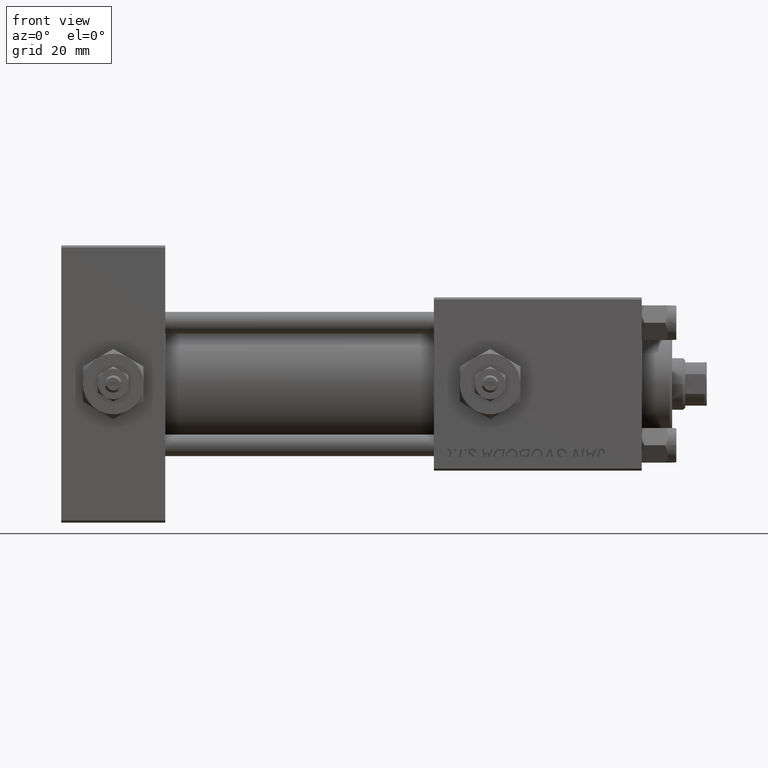
[diagram: clean part render]
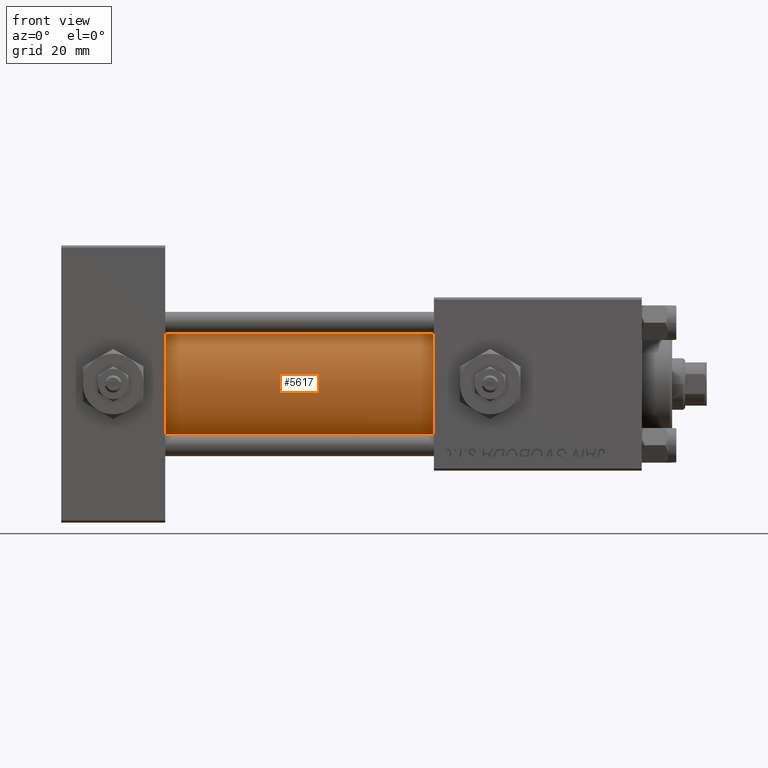
[diagram: same view with one face highlighted and labeled with its STEP entity id]
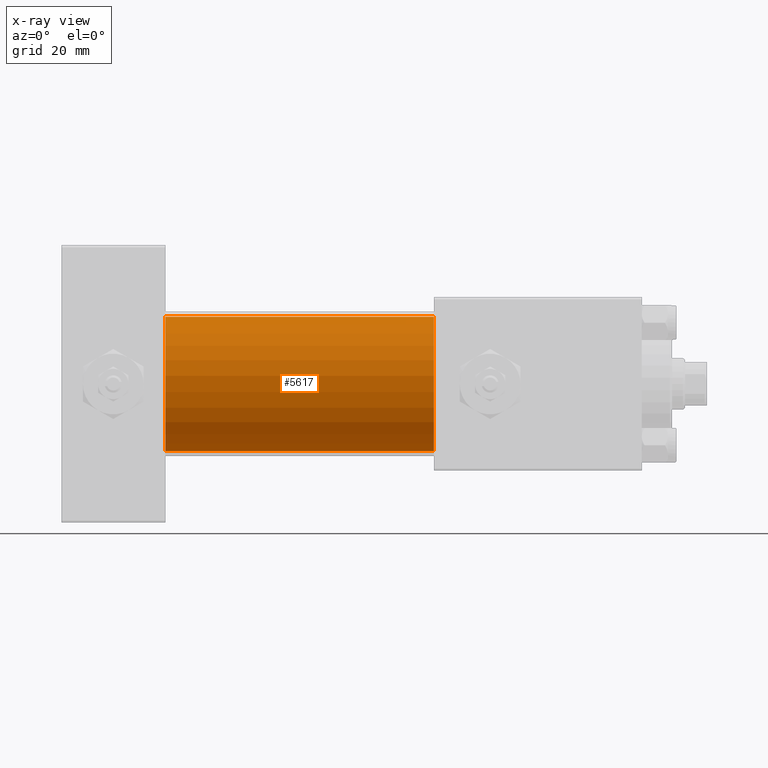
[diagram: x-ray of the same camera — body ghosted, the highlighted face saturated]
A machine part, front view. The second image highlights one B-rep face of the part: STEP entity #5617.
The next image is the same camera in x-ray: the body ghosted, the highlighted face saturated — about 0% of this face is hidden behind the body in this view.
In plain terms, the highlighted cylindrical surface (partial cylindrical patch) has radius 15.5 mm, axis along (-1, -0, -0).
Its self-contained STEP definition (entity closure, byte-faithful):
#3108 = ORIENTED_EDGE ( 'NONE', *, *, #39541, .F. ) ;
#3184 = FACE_OUTER_BOUND ( 'NONE', #23224, .T. ) ;
#4282 = AXIS2_PLACEMENT_3D ( 'NONE', #8747, #48393, #20033 ) ;
#4818 = EDGE_CURVE ( 'NONE', #21157, #40793, #36130, .T. ) ;
#5617 = ADVANCED_FACE ( 'NONE', ( #3184 ), #34932, .T. ) ;
#6907 = DIRECTION ( 'NONE',  ( 0.000000000000000000, 0.000000000000000000, -1.000000000000000000 ) ) ;
#8747 = CARTESIAN_POINT ( 'NONE',  ( 24.00000000000000000, -2.602085213965210642E-15, 0.000000000000000000 ) ) ;
#10787 = DIRECTION ( 'NONE',  ( -1.000000000000000000, -0.000000000000000000, -0.000000000000000000 ) ) ;
#11150 = CARTESIAN_POINT ( 'NONE',  ( 86.00000000000000000, -7.038826752868131828E-16, -15.50000000000000000 ) ) ;
#11913 = ORIENTED_EDGE ( 'NONE', *, *, #4818, .T. ) ;
#11941 = CARTESIAN_POINT ( 'NONE',  ( 24.00000000000000000, -2.602085213965210642E-15, 15.50000000000000000 ) ) ;
#15349 = LINE ( 'NONE', #11150, #34697 ) ;
#17643 = CARTESIAN_POINT ( 'NONE',  ( 86.00000000000000000, -7.038826752868131828E-16, -15.50000000000000000 ) ) ;
#18709 = CARTESIAN_POINT ( 'NONE',  ( 86.00000000000000000, -2.602085213965210642E-15, 15.50000000000000000 ) ) ;
#20033 = DIRECTION ( 'NONE',  ( 0.000000000000000000, 0.000000000000000000, 1.000000000000000000 ) ) ;
#20152 = EDGE_CURVE ( 'NONE', #49764, #21157, #46800, .T. ) ;
#21157 = VERTEX_POINT ( 'NONE', #11941 ) ;
#22140 = DIRECTION ( 'NONE',  ( 1.000000000000000000, 0.000000000000000000, 0.000000000000000000 ) ) ;
#23224 = EDGE_LOOP ( 'NONE', ( #26053, #3108, #36668, #11913 ) ) ;
#26053 = ORIENTED_EDGE ( 'NONE', *, *, #42327, .F. ) ;
#28921 = CARTESIAN_POINT ( 'NONE',  ( 86.00000000000000000, -2.602085213965210642E-15, 15.50000000000000000 ) ) ;
#33120 = VECTOR ( 'NONE', #38921, 1000.000000000000000 ) ;
#34593 = AXIS2_PLACEMENT_3D ( 'NONE', #44995, #22140, #6907 ) ;
#34697 = VECTOR ( 'NONE', #38978, 1000.000000000000000 ) ;
#34932 = CYLINDRICAL_SURFACE ( 'NONE', #49541, 15.50000000000000000 ) ;
#36130 = CIRCLE ( 'NONE', #4282, 15.50000000000000000 ) ;
#36668 = ORIENTED_EDGE ( 'NONE', *, *, #20152, .T. ) ;
#38921 = DIRECTION ( 'NONE',  ( -1.000000000000000000, -0.000000000000000000, -0.000000000000000000 ) ) ;
#38978 = DIRECTION ( 'NONE',  ( -1.000000000000000000, -0.000000000000000000, -0.000000000000000000 ) ) ;
#39541 = EDGE_CURVE ( 'NONE', #49764, #46847, #48834, .T. ) ;
#40793 = VERTEX_POINT ( 'NONE', #48103 ) ;
#42327 = EDGE_CURVE ( 'NONE', #46847, #40793, #15349, .T. ) ;
#42806 = DIRECTION ( 'NONE',  ( 0.000000000000000000, 0.000000000000000000, 1.000000000000000000 ) ) ;
#44995 = CARTESIAN_POINT ( 'NONE',  ( 86.00000000000000000, -2.602085213965210642E-15, 0.000000000000000000 ) ) ;
#46800 = LINE ( 'NONE', #18709, #33120 ) ;
#46847 = VERTEX_POINT ( 'NONE', #17643 ) ;
#47260 = CARTESIAN_POINT ( 'NONE',  ( 86.00000000000000000, -2.602085213965210642E-15, 0.000000000000000000 ) ) ;
#48103 = CARTESIAN_POINT ( 'NONE',  ( 24.00000000000000000, -7.038826752868131828E-16, -15.50000000000000000 ) ) ;
#48393 = DIRECTION ( 'NONE',  ( 1.000000000000000000, 0.000000000000000000, 0.000000000000000000 ) ) ;
#48834 = CIRCLE ( 'NONE', #34593, 15.50000000000000000 ) ;
#49541 = AXIS2_PLACEMENT_3D ( 'NONE', #47260, #10787, #42806 ) ;
#49764 = VERTEX_POINT ( 'NONE', #28921 ) ;